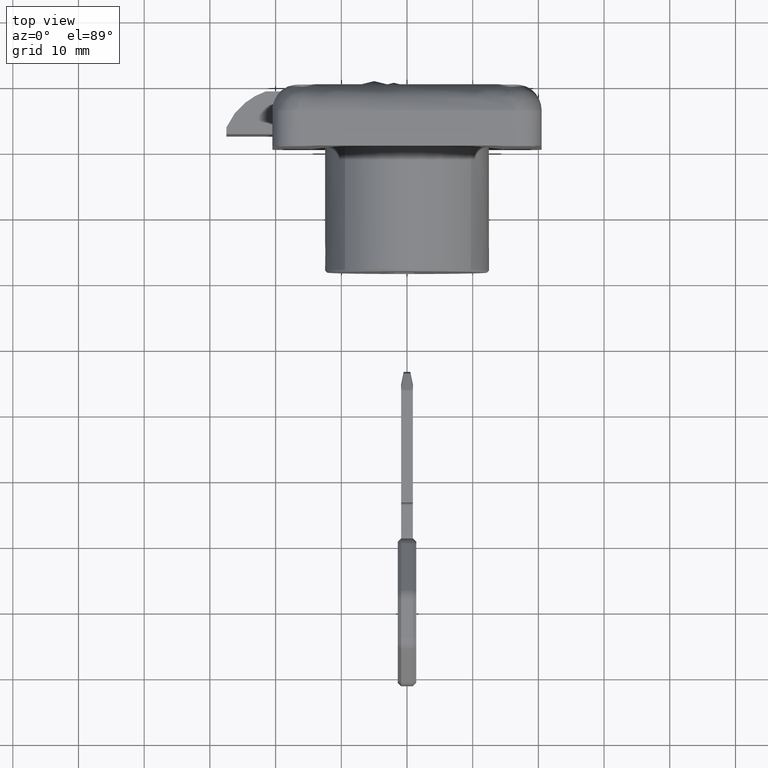
[diagram: clean part render]
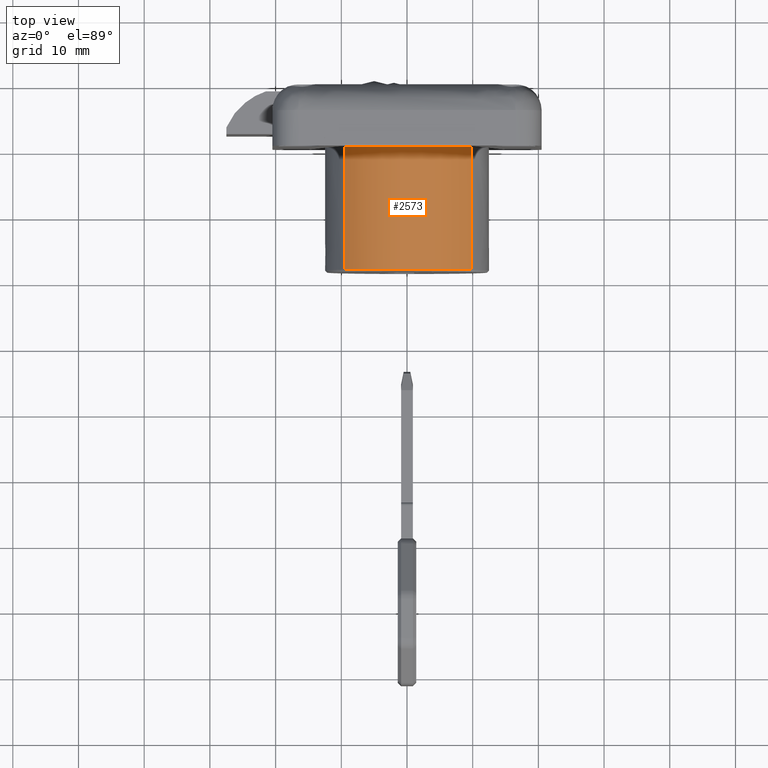
[diagram: same view with one face highlighted and labeled with its STEP entity id]
A machine part, top view. The second image highlights one B-rep face of the part: STEP entity #2573.
In plain terms, the highlighted face is a freeform B-spline surface patch.
Its self-contained STEP definition (entity closure, byte-faithful):
#2211=CARTESIAN_POINT('',(9.726475299554652,-28.099999999984430,7.851476182432934));
#2212=VERTEX_POINT('',#2211);
#2226=CARTESIAN_POINT('',(0.0,-28.099999999984600,12.499999999888580));
#2227=VERTEX_POINT('',#2226);
#2228=CARTESIAN_POINT('',(9.726475299554652,-28.099999999984433,7.851476182432934));
#2229=CARTESIAN_POINT('',(5.974060070847054,-28.099999999984608,12.499999999888585));
#2230=CARTESIAN_POINT('',(0.0,-28.099999999984600,12.499999999888580));
#2238=(BOUNDED_CURVE()B_SPLINE_CURVE(2,(#2228,#2229,#2230),.UNSPECIFIED.,.F.,.U.)B_SPLINE_CURVE_WITH_KNOTS((3,3),(0.358950614935817,0.500000000000000),.UNSPECIFIED.)CURVE()GEOMETRIC_REPRESENTATION_ITEM()RATIONAL_B_SPLINE_CURVE((0.855967606400061,0.834750366387574,1.0))REPRESENTATION_ITEM(''));
#2239=EDGE_CURVE('',#2212,#2227,#2238,.T.);
#2241=CARTESIAN_POINT('',(-9.428600477709409,-28.099999999984600,8.206795539551116));
#2242=VERTEX_POINT('',#2241);
#2243=CARTESIAN_POINT('',(0.0,-28.099999999984600,12.499999999888580));
#2244=CARTESIAN_POINT('',(-5.691730801419981,-28.099999999984593,12.499999999888585));
#2245=CARTESIAN_POINT('',(-9.428600477709409,-28.099999999984597,8.206795539551116));
#2253=(BOUNDED_CURVE()B_SPLINE_CURVE(2,(#2243,#2244,#2245),.UNSPECIFIED.,.F.,.U.)B_SPLINE_CURVE_WITH_KNOTS((3,3),(0.500000000000000,0.635441241814190),.UNSPECIFIED.)CURVE()GEOMETRIC_REPRESENTATION_ITEM()RATIONAL_B_SPLINE_CURVE((1.0,0.841320714899803,0.854575185192875))REPRESENTATION_ITEM(''));
#2254=EDGE_CURVE('',#2227,#2242,#2253,.T.);
#2324=CARTESIAN_POINT('',(-9.428591157330924,-9.399999999982178,8.206806247511146));
#2325=VERTEX_POINT('',#2324);
#2500=CARTESIAN_POINT('',(9.726465911386004,-9.399999999981539,7.851487812566796));
#2501=VERTEX_POINT('',#2500);
#2515=CARTESIAN_POINT('',(9.726465911386004,-9.399999999981539,7.851487812566796));
#2516=CARTESIAN_POINT('',(9.726475299554652,-28.099999999984430,7.851476182432934));
#2517=QUASI_UNIFORM_CURVE('',1,(#2515,#2516),.UNSPECIFIED.,.F.,.U.);
#2518=EDGE_CURVE('',#2501,#2212,#2517,.T.);
#2524=CARTESIAN_POINT('',(-9.428591157330924,-9.399999999982178,8.206806247511146));
#2525=CARTESIAN_POINT('',(-9.428600477709409,-28.099999999984600,8.206795539551116));
#2526=QUASI_UNIFORM_CURVE('',1,(#2524,#2525),.UNSPECIFIED.,.F.,.U.);
#2527=EDGE_CURVE('',#2325,#2242,#2526,.T.);
#2532=CARTESIAN_POINT('',(9.726472665276287,-8.932499999953141,7.851479445805005));
#2533=CARTESIAN_POINT('',(1.874993219592585,-8.932499999953141,17.577952111081292));
#2534=CARTESIAN_POINT('',(-7.851479445683702,-8.932499999953141,9.726472665397589));
#2535=CARTESIAN_POINT('',(-8.706862320337841,-8.932499999953141,9.035983801689252));
#2536=CARTESIAN_POINT('',(-9.428599161183696,-8.932499999953141,8.206797052082960));
#2537=CARTESIAN_POINT('',(9.726472665276287,-28.579187499985391,7.851479445805005));
#2538=CARTESIAN_POINT('',(1.874993219592585,-28.579187499985398,17.577952111081292));
#2539=CARTESIAN_POINT('',(-7.851479445683702,-28.579187499985391,9.726472665397589));
#2540=CARTESIAN_POINT('',(-8.706862320337841,-28.579187499985391,9.035983801689252));
#2541=CARTESIAN_POINT('',(-9.428599161183696,-28.579187499985387,8.206797052082960));
#2549=(BOUNDED_SURFACE()B_SPLINE_SURFACE(2,1,((#2532,#2537),(#2533,#2538),(#2534,#2539),(#2535,#2540),(#2536,#2541)),.UNSPECIFIED.,.F.,.F.,.U.)B_SPLINE_SURFACE_WITH_KNOTS((3,2,3),(2,2),(0.0,20.710678118280999,23.195959492474721),(0.0,19.646687500032250),.UNSPECIFIED.)GEOMETRIC_REPRESENTATION_ITEM()RATIONAL_B_SPLINE_SURFACE(((1.0,1.0),(0.707106781186548,0.707106781186548),(1.0,1.0),(0.964852813742386,0.964852813742386),(0.938140952186599,0.938140952186599)))REPRESENTATION_ITEM('')SURFACE());
#2550=CARTESIAN_POINT('',(9.726465911386004,-9.399999999981539,7.851487812566796));
#2551=CARTESIAN_POINT('',(8.373171702968726,-9.399999999984798,9.527956056647199));
#2552=CARTESIAN_POINT('',(6.536722775847347,-9.399999999984798,10.654635392581129));
#2553=CARTESIAN_POINT('',(-3.348016E-013,-9.399999999984800,14.664978597616779));
#2554=CARTESIAN_POINT('',(-6.536722775847833,-9.399999999984798,10.654635392580831));
#2555=CARTESIAN_POINT('',(-8.170309635012309,-9.399999999984798,9.652413914764388));
#2556=CARTESIAN_POINT('',(-9.428591157330924,-9.399999999982178,8.206806247511146));
#2564=(BOUNDED_CURVE()B_SPLINE_CURVE(2,(#2550,#2551,#2552,#2553,#2554,#2555,#2556),.UNSPECIFIED.,.F.,.U.)B_SPLINE_CURVE_WITH_KNOTS((3,2,2,3),(0.228563874105427,0.333333333333333,0.666666666666667,0.760342992985671),.UNSPECIFIED.)CURVE()GEOMETRIC_REPRESENTATION_ITEM()RATIONAL_B_SPLINE_CURVE((0.936366330214373,0.953598915522206,1.0,0.852370831411669,1.0,0.958511925487349,0.940342553413063))REPRESENTATION_ITEM(''));
#2565=EDGE_CURVE('',#2501,#2325,#2564,.T.);
#2566=ORIENTED_EDGE('',*,*,#2565,.T.);
#2567=ORIENTED_EDGE('',*,*,#2527,.T.);
#2568=ORIENTED_EDGE('',*,*,#2254,.F.);
#2569=ORIENTED_EDGE('',*,*,#2239,.F.);
#2570=ORIENTED_EDGE('',*,*,#2518,.F.);
#2571=EDGE_LOOP('',(#2566,#2567,#2568,#2569,#2570));
#2572=FACE_OUTER_BOUND('',#2571,.T.);
#2573=ADVANCED_FACE('',(#2572),#2549,.T.);